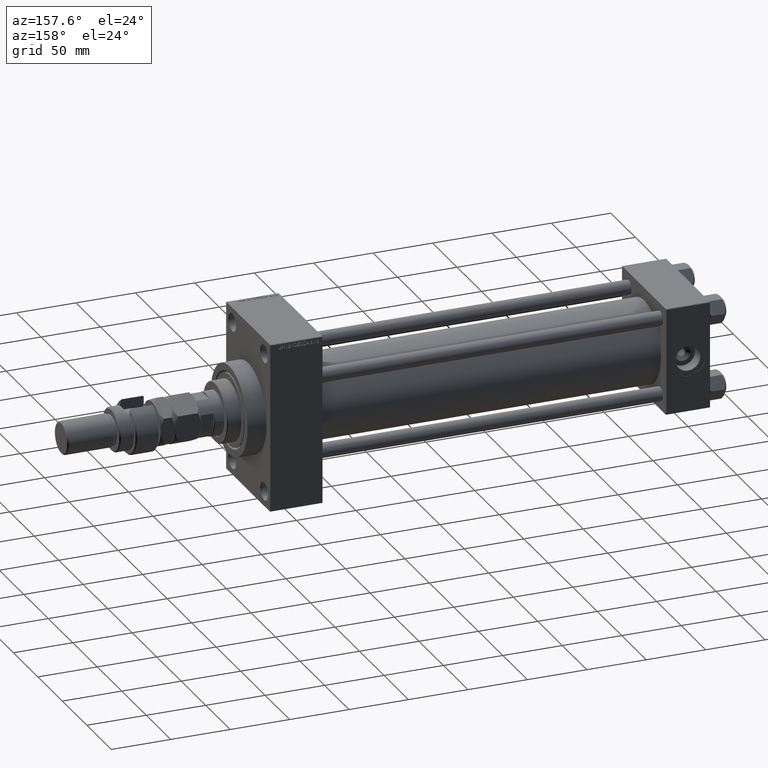
[diagram: clean part render]
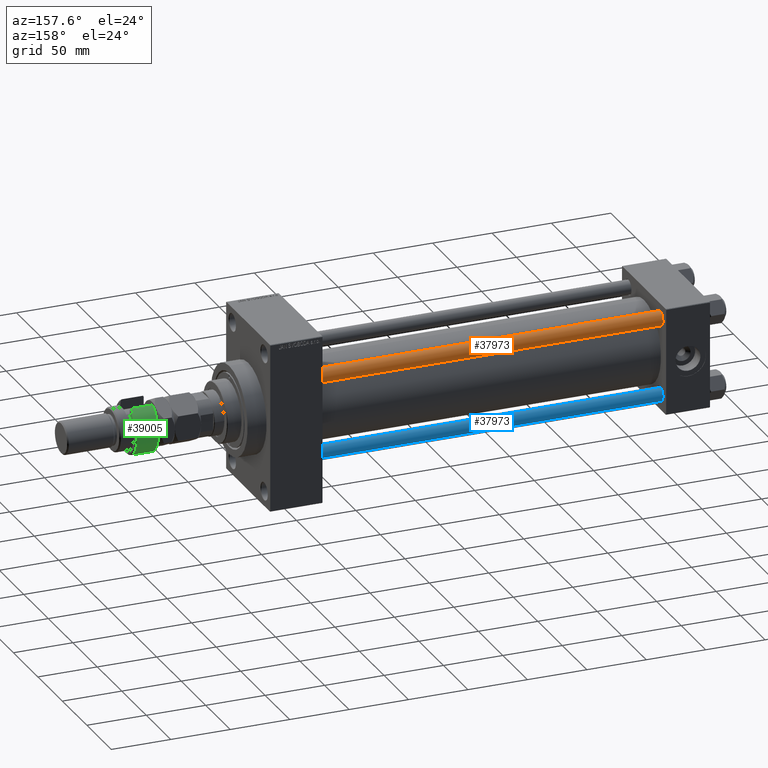
[diagram: same view with three faces highlighted in distinct colors, each labeled with its STEP entity id]
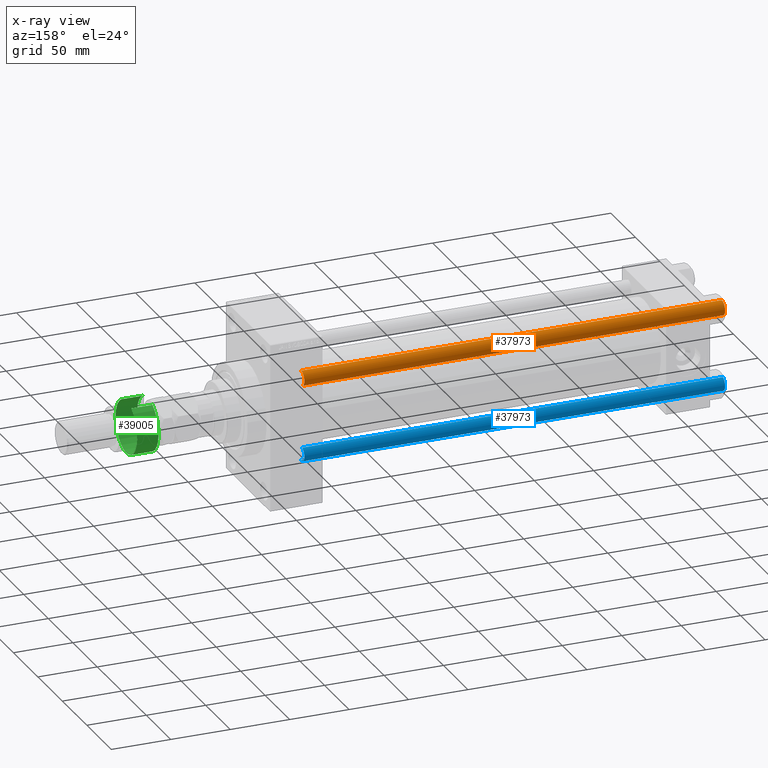
[diagram: x-ray of the same camera — body ghosted, the three highlighted faces saturated]
A machine part, auxiliary view with three faces highlighted in distinct colors.
The next image is the same camera in x-ray (body ghosted, the three faces saturated) — at least one of them is partly hidden behind the body in this view.
Their STEP definitions:

[orange] entity #37973 — the highlighted cylindrical surface (edge-blend (fillet) strip) has radius 6 mm, axis along (-1, -0, 0).
#813 = DIRECTION ( 'NONE',  ( -0.000000000000000000, -0.000000000000000000, -1.000000000000000000 ) ) ;
#827 = CYLINDRICAL_SURFACE ( 'NONE', #34965, 6.000000000000000888 ) ;
#2563 = DIRECTION ( 'NONE',  ( 1.000000000000000000, 0.000000000000000000, 0.000000000000000000 ) ) ;
#4015 = ORIENTED_EDGE ( 'NONE', *, *, #45549, .T. ) ;
#4907 = AXIS2_PLACEMENT_3D ( 'NONE', #41738, #29257, #2563 ) ;
#5652 = ORIENTED_EDGE ( 'NONE', *, *, #13817, .T. ) ;
#8953 = DIRECTION ( 'NONE',  ( -0.000000000000000000, -0.000000000000000000, -1.000000000000000000 ) ) ;
#12491 = LINE ( 'NONE', #35672, #16355 ) ;
#13817 = EDGE_CURVE ( 'NONE', #33837, #27145, #33333, .T. ) ;
#16355 = VECTOR ( 'NONE', #813, 1000.000000000000000 ) ;
#16475 = EDGE_LOOP ( 'NONE', ( #5652, #17807, #4015, #48501 ) ) ;
#16802 = FACE_OUTER_BOUND ( 'NONE', #16475, .T. ) ;
#17807 = ORIENTED_EDGE ( 'NONE', *, *, #23219, .T. ) ;
#18029 = DIRECTION ( 'NONE',  ( -0.000000000000000000, -0.000000000000000000, -1.000000000000000000 ) ) ;
#19799 = EDGE_CURVE ( 'NONE', #33837, #49044, #12491, .T. ) ;
#21858 = LINE ( 'NONE', #46032, #42611 ) ;
#23125 = CARTESIAN_POINT ( 'NONE',  ( 0.000000000000000000, 0.000000000000000000, 0.5000000000001114664 ) ) ;
#23219 = EDGE_CURVE ( 'NONE', #27145, #48787, #21858, .T. ) ;
#23315 = CARTESIAN_POINT ( 'NONE',  ( -6.000000000000000888, 0.000000000000000000, 354.5000000000000000 ) ) ;
#25296 = CIRCLE ( 'NONE', #44027, 6.000000000000000888 ) ;
#27145 = VERTEX_POINT ( 'NONE', #30936 ) ;
#27466 = DIRECTION ( 'NONE',  ( -0.000000000000000000, -0.000000000000000000, 1.000000000000000000 ) ) ;
#28280 = CARTESIAN_POINT ( 'NONE',  ( 0.000000000000000000, 0.000000000000000000, 355.0000000000000000 ) ) ;
#29257 = DIRECTION ( 'NONE',  ( 0.000000000000000000, 0.000000000000000000, -1.000000000000000000 ) ) ;
#30936 = CARTESIAN_POINT ( 'NONE',  ( 6.000000000000000888, 7.347880794884120722E-16, 354.5000000000000000 ) ) ;
#33333 = CIRCLE ( 'NONE', #4907, 6.000000000000000888 ) ;
#33837 = VERTEX_POINT ( 'NONE', #23315 ) ;
#34547 = CARTESIAN_POINT ( 'NONE',  ( -6.000000000000000888, 0.000000000000000000, 0.5000000000001114664 ) ) ;
#34965 = AXIS2_PLACEMENT_3D ( 'NONE', #28280, #8953, #47383 ) ;
#35672 = CARTESIAN_POINT ( 'NONE',  ( -6.000000000000000888, 0.000000000000000000, 355.0000000000000000 ) ) ;
#37973 = ADVANCED_FACE ( 'NONE', ( #16802 ), #827, .T. ) ;
#40240 = CARTESIAN_POINT ( 'NONE',  ( 6.000000000000000888, 7.347880794884120722E-16, 0.5000000000001114664 ) ) ;
#41738 = CARTESIAN_POINT ( 'NONE',  ( 0.000000000000000000, 0.000000000000000000, 354.5000000000000000 ) ) ;
#42611 = VECTOR ( 'NONE', #18029, 1000.000000000000000 ) ;
#42993 = DIRECTION ( 'NONE',  ( 1.000000000000000000, 0.000000000000000000, 0.000000000000000000 ) ) ;
#44027 = AXIS2_PLACEMENT_3D ( 'NONE', #23125, #27466, #42993 ) ;
#45549 = EDGE_CURVE ( 'NONE', #48787, #49044, #25296, .T. ) ;
#46032 = CARTESIAN_POINT ( 'NONE',  ( 6.000000000000000888, 7.347880794884120722E-16, 355.0000000000000000 ) ) ;
#47383 = DIRECTION ( 'NONE',  ( -1.000000000000000000, 0.000000000000000000, 0.000000000000000000 ) ) ;
#48501 = ORIENTED_EDGE ( 'NONE', *, *, #19799, .F. ) ;
#48787 = VERTEX_POINT ( 'NONE', #40240 ) ;
#49044 = VERTEX_POINT ( 'NONE', #34547 ) ;

[blue] entity #37973 — the highlighted cylindrical surface (edge-blend (fillet) strip) has radius 6 mm, axis along (1, -0, 0).
#813 = DIRECTION ( 'NONE',  ( -0.000000000000000000, -0.000000000000000000, -1.000000000000000000 ) ) ;
#827 = CYLINDRICAL_SURFACE ( 'NONE', #34965, 6.000000000000000888 ) ;
#2563 = DIRECTION ( 'NONE',  ( 1.000000000000000000, 0.000000000000000000, 0.000000000000000000 ) ) ;
#4015 = ORIENTED_EDGE ( 'NONE', *, *, #45549, .T. ) ;
#4907 = AXIS2_PLACEMENT_3D ( 'NONE', #41738, #29257, #2563 ) ;
#5652 = ORIENTED_EDGE ( 'NONE', *, *, #13817, .T. ) ;
#8953 = DIRECTION ( 'NONE',  ( -0.000000000000000000, -0.000000000000000000, -1.000000000000000000 ) ) ;
#12491 = LINE ( 'NONE', #35672, #16355 ) ;
#13817 = EDGE_CURVE ( 'NONE', #33837, #27145, #33333, .T. ) ;
#16355 = VECTOR ( 'NONE', #813, 1000.000000000000000 ) ;
#16475 = EDGE_LOOP ( 'NONE', ( #5652, #17807, #4015, #48501 ) ) ;
#16802 = FACE_OUTER_BOUND ( 'NONE', #16475, .T. ) ;
#17807 = ORIENTED_EDGE ( 'NONE', *, *, #23219, .T. ) ;
#18029 = DIRECTION ( 'NONE',  ( -0.000000000000000000, -0.000000000000000000, -1.000000000000000000 ) ) ;
#19799 = EDGE_CURVE ( 'NONE', #33837, #49044, #12491, .T. ) ;
#21858 = LINE ( 'NONE', #46032, #42611 ) ;
#23125 = CARTESIAN_POINT ( 'NONE',  ( 0.000000000000000000, 0.000000000000000000, 0.5000000000001114664 ) ) ;
#23219 = EDGE_CURVE ( 'NONE', #27145, #48787, #21858, .T. ) ;
#23315 = CARTESIAN_POINT ( 'NONE',  ( -6.000000000000000888, 0.000000000000000000, 354.5000000000000000 ) ) ;
#25296 = CIRCLE ( 'NONE', #44027, 6.000000000000000888 ) ;
#27145 = VERTEX_POINT ( 'NONE', #30936 ) ;
#27466 = DIRECTION ( 'NONE',  ( -0.000000000000000000, -0.000000000000000000, 1.000000000000000000 ) ) ;
#28280 = CARTESIAN_POINT ( 'NONE',  ( 0.000000000000000000, 0.000000000000000000, 355.0000000000000000 ) ) ;
#29257 = DIRECTION ( 'NONE',  ( 0.000000000000000000, 0.000000000000000000, -1.000000000000000000 ) ) ;
#30936 = CARTESIAN_POINT ( 'NONE',  ( 6.000000000000000888, 7.347880794884120722E-16, 354.5000000000000000 ) ) ;
#33333 = CIRCLE ( 'NONE', #4907, 6.000000000000000888 ) ;
#33837 = VERTEX_POINT ( 'NONE', #23315 ) ;
#34547 = CARTESIAN_POINT ( 'NONE',  ( -6.000000000000000888, 0.000000000000000000, 0.5000000000001114664 ) ) ;
#34965 = AXIS2_PLACEMENT_3D ( 'NONE', #28280, #8953, #47383 ) ;
#35672 = CARTESIAN_POINT ( 'NONE',  ( -6.000000000000000888, 0.000000000000000000, 355.0000000000000000 ) ) ;
#37973 = ADVANCED_FACE ( 'NONE', ( #16802 ), #827, .T. ) ;
#40240 = CARTESIAN_POINT ( 'NONE',  ( 6.000000000000000888, 7.347880794884120722E-16, 0.5000000000001114664 ) ) ;
#41738 = CARTESIAN_POINT ( 'NONE',  ( 0.000000000000000000, 0.000000000000000000, 354.5000000000000000 ) ) ;
#42611 = VECTOR ( 'NONE', #18029, 1000.000000000000000 ) ;
#42993 = DIRECTION ( 'NONE',  ( 1.000000000000000000, 0.000000000000000000, 0.000000000000000000 ) ) ;
#44027 = AXIS2_PLACEMENT_3D ( 'NONE', #23125, #27466, #42993 ) ;
#45549 = EDGE_CURVE ( 'NONE', #48787, #49044, #25296, .T. ) ;
#46032 = CARTESIAN_POINT ( 'NONE',  ( 6.000000000000000888, 7.347880794884120722E-16, 355.0000000000000000 ) ) ;
#47383 = DIRECTION ( 'NONE',  ( -1.000000000000000000, 0.000000000000000000, 0.000000000000000000 ) ) ;
#48501 = ORIENTED_EDGE ( 'NONE', *, *, #19799, .F. ) ;
#48787 = VERTEX_POINT ( 'NONE', #40240 ) ;
#49044 = VERTEX_POINT ( 'NONE', #34547 ) ;

[green] entity #39005 — the highlighted cylindrical surface (edge-blend (fillet) strip) has radius 22 mm, axis along (-1, -0, 0).
#518 = CARTESIAN_POINT ( 'NONE',  ( 0.000000000000000000, 0.000000000000000000, 20.00000000000000000 ) ) ;
#1341 = AXIS2_PLACEMENT_3D ( 'NONE', #41891, #38324, #46202 ) ;
#1638 = VERTEX_POINT ( 'NONE', #12794 ) ;
#2397 = VERTEX_POINT ( 'NONE', #39292 ) ;
#2466 = CARTESIAN_POINT ( 'NONE',  ( 22.00000000000000000, 0.000000000000000000, 1.000000000000000888 ) ) ;
#2581 = CARTESIAN_POINT ( 'NONE',  ( 0.000000000000000000, 0.000000000000000000, 1.000000000000000888 ) ) ;
#3510 = ORIENTED_EDGE ( 'NONE', *, *, #17635, .T. ) ;
#4649 = CARTESIAN_POINT ( 'NONE',  ( -19.84313483298442193, -9.500000000000005329, 23.00000000000000000 ) ) ;
#5023 = VERTEX_POINT ( 'NONE', #17212 ) ;
#7201 = VECTOR ( 'NONE', #25929, 1000.000000000000000 ) ;
#11570 = AXIS2_PLACEMENT_3D ( 'NONE', #2581, #47896, #25453 ) ;
#11848 = CARTESIAN_POINT ( 'NONE',  ( -19.84313483298442904, 9.500000000000000000, 18.99999999999998579 ) ) ;
#12794 = CARTESIAN_POINT ( 'NONE',  ( -19.84313483298442193, -9.500000000000005329, 1.000000000000000888 ) ) ;
#17070 = CIRCLE ( 'NONE', #46342, 22.00000000000000000 ) ;
#17212 = CARTESIAN_POINT ( 'NONE',  ( -19.84313483298442193, -9.500000000000005329, 18.99999999999998579 ) ) ;
#17635 = EDGE_CURVE ( 'NONE', #23810, #5023, #17070, .T. ) ;
#19828 = DIRECTION ( 'NONE',  ( -0.000000000000000000, -0.000000000000000000, -1.000000000000000000 ) ) ;
#20154 = DIRECTION ( 'NONE',  ( -0.000000000000000000, -0.000000000000000000, -1.000000000000000000 ) ) ;
#21970 = AXIS2_PLACEMENT_3D ( 'NONE', #518, #19828, #38437 ) ;
#22117 = LINE ( 'NONE', #30515, #7201 ) ;
#23781 = CIRCLE ( 'NONE', #11570, 22.00000000000000000 ) ;
#23810 = VERTEX_POINT ( 'NONE', #11848 ) ;
#25453 = DIRECTION ( 'NONE',  ( 1.000000000000000000, 0.000000000000000000, 0.000000000000000000 ) ) ;
#25929 = DIRECTION ( 'NONE',  ( -0.000000000000000000, -0.000000000000000000, -1.000000000000000000 ) ) ;
#26254 = DIRECTION ( 'NONE',  ( 0.000000000000000000, 0.000000000000000000, -1.000000000000000000 ) ) ;
#26280 = EDGE_CURVE ( 'NONE', #1638, #30458, #41938, .T. ) ;
#27475 = CYLINDRICAL_SURFACE ( 'NONE', #21970, 22.00000000000000000 ) ;
#30458 = VERTEX_POINT ( 'NONE', #2466 ) ;
#30515 = CARTESIAN_POINT ( 'NONE',  ( -19.84313483298442904, 9.500000000000000000, 23.00000000000000000 ) ) ;
#31323 = ORIENTED_EDGE ( 'NONE', *, *, #26280, .T. ) ;
#31717 = VECTOR ( 'NONE', #20154, 1000.000000000000000 ) ;
#32040 = ORIENTED_EDGE ( 'NONE', *, *, #35692, .F. ) ;
#34167 = DIRECTION ( 'NONE',  ( 1.000000000000000000, 0.000000000000000000, 0.000000000000000000 ) ) ;
#35692 = EDGE_CURVE ( 'NONE', #23810, #2397, #22117, .T. ) ;
#36066 = ORIENTED_EDGE ( 'NONE', *, *, #39410, .T. ) ;
#36753 = ORIENTED_EDGE ( 'NONE', *, *, #47267, .T. ) ;
#38324 = DIRECTION ( 'NONE',  ( -0.000000000000000000, -0.000000000000000000, 1.000000000000000000 ) ) ;
#38437 = DIRECTION ( 'NONE',  ( -1.000000000000000000, 0.000000000000000000, 0.000000000000000000 ) ) ;
#39005 = ADVANCED_FACE ( 'NONE', ( #47080 ), #27475, .T. ) ;
#39292 = CARTESIAN_POINT ( 'NONE',  ( -19.84313483298442904, 9.500000000000000000, 1.000000000000000888 ) ) ;
#39410 = EDGE_CURVE ( 'NONE', #5023, #1638, #43571, .T. ) ;
#40375 = EDGE_LOOP ( 'NONE', ( #32040, #3510, #36066, #31323, #36753 ) ) ;
#41891 = CARTESIAN_POINT ( 'NONE',  ( 0.000000000000000000, 0.000000000000000000, 1.000000000000000888 ) ) ;
#41938 = CIRCLE ( 'NONE', #1341, 22.00000000000000000 ) ;
#42044 = CARTESIAN_POINT ( 'NONE',  ( 0.000000000000000000, 0.000000000000000000, 18.99999999999998579 ) ) ;
#43571 = LINE ( 'NONE', #4649, #31717 ) ;
#46202 = DIRECTION ( 'NONE',  ( 1.000000000000000000, 0.000000000000000000, 0.000000000000000000 ) ) ;
#46342 = AXIS2_PLACEMENT_3D ( 'NONE', #42044, #26254, #34167 ) ;
#47080 = FACE_OUTER_BOUND ( 'NONE', #40375, .T. ) ;
#47267 = EDGE_CURVE ( 'NONE', #30458, #2397, #23781, .T. ) ;
#47896 = DIRECTION ( 'NONE',  ( -0.000000000000000000, -0.000000000000000000, 1.000000000000000000 ) ) ;